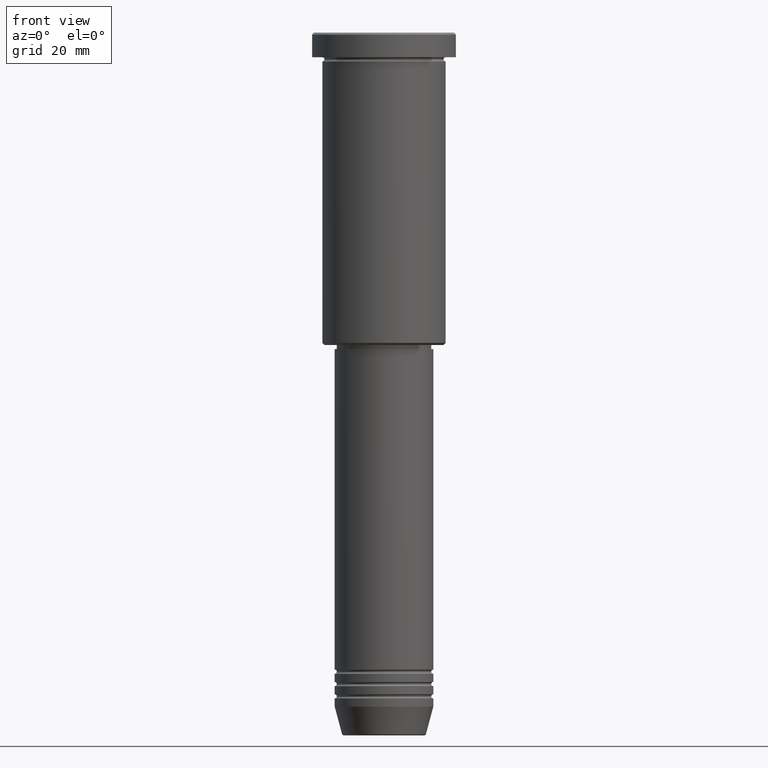
[diagram: clean part render]
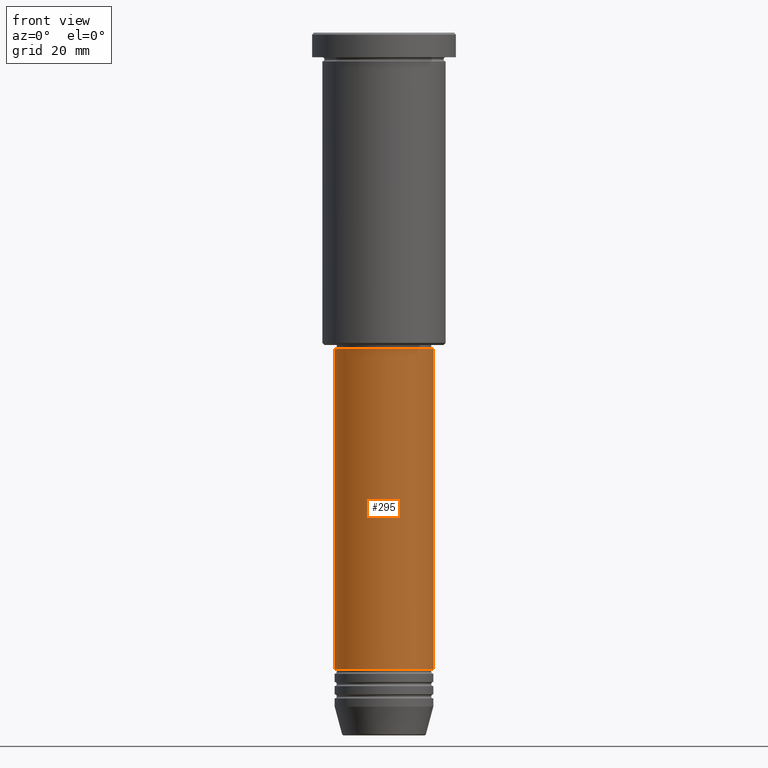
[diagram: same view with one face highlighted and labeled with its STEP entity id]
A machine part, front view. The second image highlights one B-rep face of the part: STEP entity #295.
In plain terms, the highlighted cylindrical surface (partial cylindrical patch) has radius 12 mm, axis along (-0, -0, 1).
Its self-contained STEP definition (entity closure, byte-faithful):
#11 = CARTESIAN_POINT ( 'NONE',  ( -12.00000000000000000, 1.469576158976823947E-15, -77.00000000000001421 ) ) ;
#20 = DIRECTION ( 'NONE',  ( 1.000000000000000000, 0.000000000000000000, 0.000000000000000000 ) ) ;
#60 = CARTESIAN_POINT ( 'NONE',  ( 0.000000000000000000, 0.000000000000000000, -154.9999999999999716 ) ) ;
#126 = VERTEX_POINT ( 'NONE', #11 ) ;
#150 = ORIENTED_EDGE ( 'NONE', *, *, #500, .F. ) ;
#192 = CARTESIAN_POINT ( 'NONE',  ( 0.000000000000000000, 0.000000000000000000, -77.00000000000001421 ) ) ;
#237 = LINE ( 'NONE', #513, #456 ) ;
#266 = CIRCLE ( 'NONE', #718, 12.00000000000000000 ) ;
#295 = ADVANCED_FACE ( 'NONE', ( #1108 ), #1014, .T. ) ;
#338 = CARTESIAN_POINT ( 'NONE',  ( -12.00000000000000000, 1.469576158976823947E-15, 0.000000000000000000 ) ) ;
#384 = VERTEX_POINT ( 'NONE', #1069 ) ;
#393 = ORIENTED_EDGE ( 'NONE', *, *, #839, .T. ) ;
#448 = DIRECTION ( 'NONE',  ( -0.000000000000000000, -0.000000000000000000, 1.000000000000000000 ) ) ;
#450 = DIRECTION ( 'NONE',  ( -0.000000000000000000, -0.000000000000000000, 1.000000000000000000 ) ) ;
#456 = VECTOR ( 'NONE', #799, 1000.000000000000000 ) ;
#473 = VECTOR ( 'NONE', #793, 1000.000000000000000 ) ;
#500 = EDGE_CURVE ( 'NONE', #126, #669, #873, .T. ) ;
#501 = VERTEX_POINT ( 'NONE', #535 ) ;
#513 = CARTESIAN_POINT ( 'NONE',  ( 12.00000000000000000, 0.000000000000000000, 0.000000000000000000 ) ) ;
#533 = AXIS2_PLACEMENT_3D ( 'NONE', #843, #573, #20 ) ;
#535 = CARTESIAN_POINT ( 'NONE',  ( 12.00000000000000000, 0.000000000000000000, -154.9999999999999716 ) ) ;
#562 = ORIENTED_EDGE ( 'NONE', *, *, #762, .T. ) ;
#573 = DIRECTION ( 'NONE',  ( -0.000000000000000000, -0.000000000000000000, 1.000000000000000000 ) ) ;
#622 = LINE ( 'NONE', #338, #473 ) ;
#644 = DIRECTION ( 'NONE',  ( 1.000000000000000000, 0.000000000000000000, 0.000000000000000000 ) ) ;
#660 = AXIS2_PLACEMENT_3D ( 'NONE', #192, #450, #644 ) ;
#669 = VERTEX_POINT ( 'NONE', #1139 ) ;
#718 = AXIS2_PLACEMENT_3D ( 'NONE', #60, #448, #1152 ) ;
#762 = EDGE_CURVE ( 'NONE', #501, #669, #237, .T. ) ;
#771 = ORIENTED_EDGE ( 'NONE', *, *, #845, .F. ) ;
#793 = DIRECTION ( 'NONE',  ( -0.000000000000000000, -0.000000000000000000, 1.000000000000000000 ) ) ;
#799 = DIRECTION ( 'NONE',  ( -0.000000000000000000, -0.000000000000000000, 1.000000000000000000 ) ) ;
#839 = EDGE_CURVE ( 'NONE', #384, #501, #266, .T. ) ;
#843 = CARTESIAN_POINT ( 'NONE',  ( 0.000000000000000000, 0.000000000000000000, 0.000000000000000000 ) ) ;
#845 = EDGE_CURVE ( 'NONE', #384, #126, #622, .T. ) ;
#873 = CIRCLE ( 'NONE', #660, 12.00000000000000000 ) ;
#951 = EDGE_LOOP ( 'NONE', ( #771, #393, #562, #150 ) ) ;
#1014 = CYLINDRICAL_SURFACE ( 'NONE', #533, 12.00000000000000000 ) ;
#1069 = CARTESIAN_POINT ( 'NONE',  ( -12.00000000000000000, 1.469576158976823947E-15, -154.9999999999999716 ) ) ;
#1108 = FACE_OUTER_BOUND ( 'NONE', #951, .T. ) ;
#1139 = CARTESIAN_POINT ( 'NONE',  ( 12.00000000000000000, 0.000000000000000000, -77.00000000000001421 ) ) ;
#1152 = DIRECTION ( 'NONE',  ( 1.000000000000000000, 0.000000000000000000, 0.000000000000000000 ) ) ;